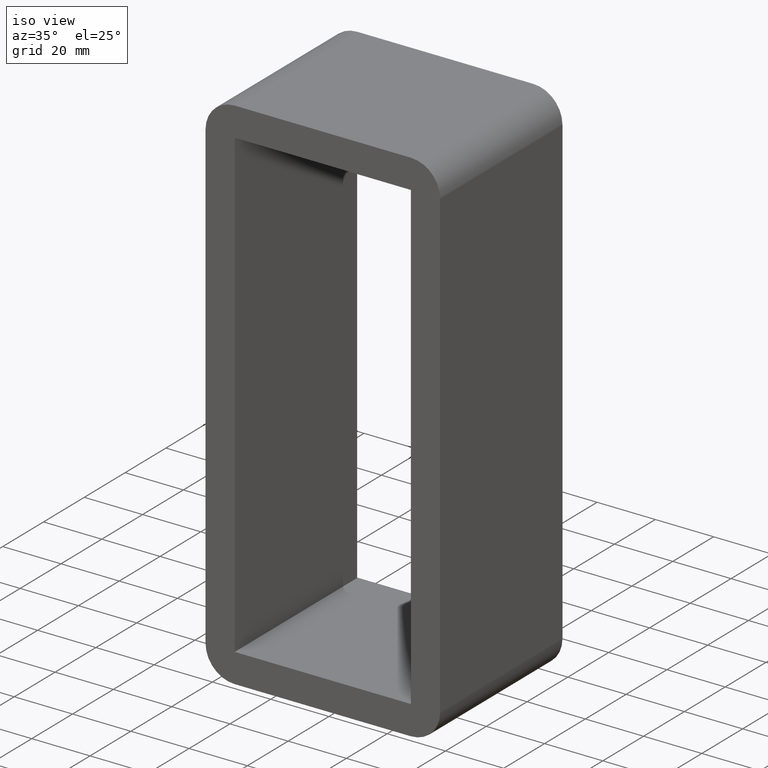
[diagram: clean part render]
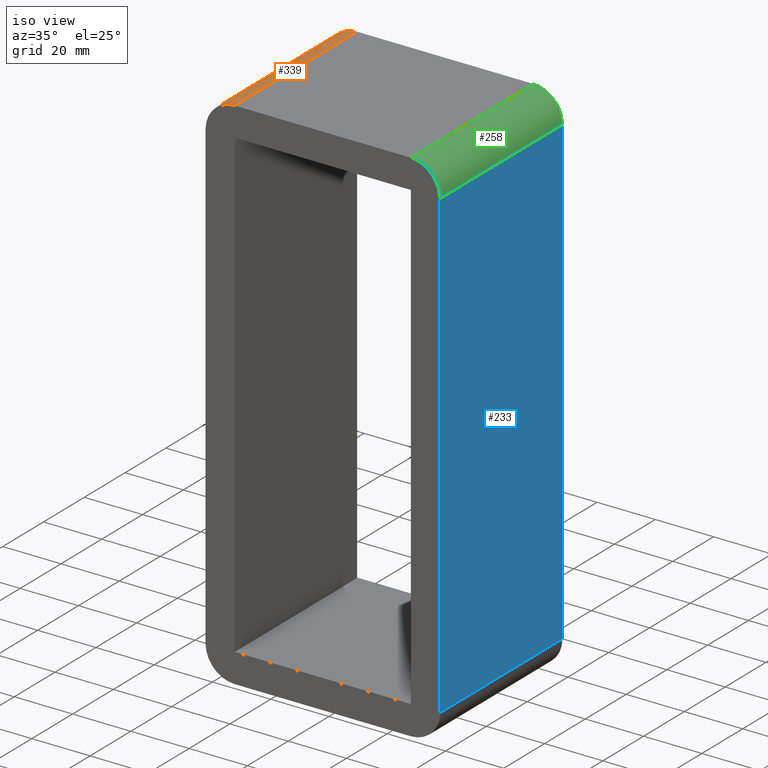
[diagram: same view with three faces highlighted in distinct colors, each labeled with its STEP entity id]
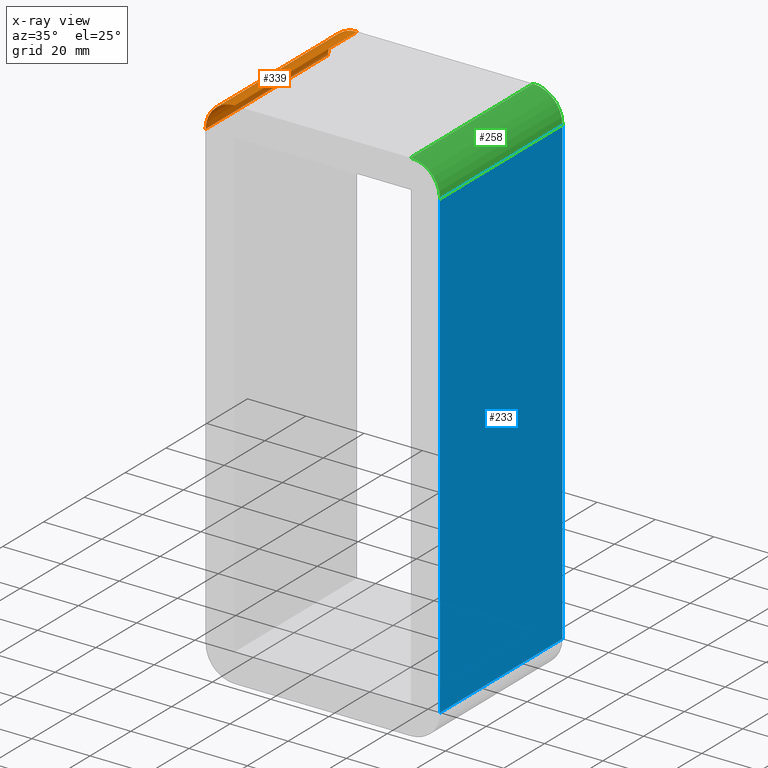
[diagram: x-ray of the same camera — body ghosted, the three highlighted faces saturated]
A machine part, iso view with three faces highlighted in distinct colors.
The next image is the same camera in x-ray (body ghosted, the three faces saturated) — at least one of them is partly hidden behind the body in this view.
Their STEP definitions:

[orange] entity #339 — the highlighted cylindrical surface (edge-blend (fillet) strip) has radius 10 mm, axis along (0, 1, 0).
#133=CARTESIAN_POINT('',(-30.250000000000014,-3.0,89.750000000000014));
#134=VERTEX_POINT('',#133);
#141=CARTESIAN_POINT('',(-40.250000000000014,-3.0,79.750000000000014));
#142=VERTEX_POINT('',#141);
#143=CARTESIAN_POINT('',(-30.250000000000014,-3.0,79.750000000000014));
#144=DIRECTION('',(0.0,1.0,0.0));
#145=DIRECTION('',(-0.707106781186547,0.0,0.707106781186547));
#146=AXIS2_PLACEMENT_3D('',#143,#144,#145);
#147=CIRCLE('',#146,9.999999999999998);
#148=EDGE_CURVE('',#142,#134,#147,.T.);
#298=CARTESIAN_POINT('',(-40.250000000000014,57.0,79.750000000000014));
#299=VERTEX_POINT('',#298);
#300=CARTESIAN_POINT('',(-40.250000000000014,57.0,79.750000000000014));
#301=DIRECTION('',(0.0,-1.0,0.0));
#302=VECTOR('',#301,60.0);
#303=LINE('',#300,#302);
#304=EDGE_CURVE('',#299,#142,#303,.T.);
#315=CARTESIAN_POINT('',(-30.250000000000014,0.0,79.750000000000014));
#316=DIRECTION('',(0.0,1.0,0.0));
#317=DIRECTION('',(-0.707106781186547,0.0,0.707106781186547));
#318=AXIS2_PLACEMENT_3D('',#315,#316,#317);
#319=CYLINDRICAL_SURFACE('',#318,10.0);
#320=CARTESIAN_POINT('',(-30.250000000000014,57.0,89.750000000000014));
#321=VERTEX_POINT('',#320);
#322=CARTESIAN_POINT('',(-30.250000000000014,57.0,79.750000000000014));
#323=DIRECTION('',(0.0,-1.0,0.0));
#324=DIRECTION('',(-0.707106781186547,0.0,0.707106781186547));
#325=AXIS2_PLACEMENT_3D('',#322,#323,#324);
#326=CIRCLE('',#325,9.999999999999998);
#327=EDGE_CURVE('',#321,#299,#326,.T.);
#328=ORIENTED_EDGE('',*,*,#327,.T.);
#329=ORIENTED_EDGE('',*,*,#304,.T.);
#330=ORIENTED_EDGE('',*,*,#148,.T.);
#331=CARTESIAN_POINT('',(-30.250000000000014,-3.0,89.750000000000014));
#332=DIRECTION('',(0.0,1.0,0.0));
#333=VECTOR('',#332,60.0);
#334=LINE('',#331,#333);
#335=EDGE_CURVE('',#134,#321,#334,.T.);
#336=ORIENTED_EDGE('',*,*,#335,.T.);
#337=EDGE_LOOP('',(#328,#329,#330,#336));
#338=FACE_OUTER_BOUND('',#337,.T.);
#339=ADVANCED_FACE('',(#338),#319,.T.);

[blue] entity #233 — the highlighted planar face has unit normal (1, 0, 0).
#75=CARTESIAN_POINT('',(40.25,57.0,-79.750000000000014));
#76=VERTEX_POINT('',#75);
#84=CARTESIAN_POINT('',(40.25,-3.0,-79.750000000000014));
#85=VERTEX_POINT('',#84);
#86=CARTESIAN_POINT('',(40.25,57.0,-79.750000000000014));
#87=DIRECTION('',(0.0,-1.0,0.0));
#88=VECTOR('',#87,60.0);
#89=LINE('',#86,#88);
#90=EDGE_CURVE('',#76,#85,#89,.T.);
#116=CARTESIAN_POINT('',(40.25,-3.0,79.750000000000014));
#117=VERTEX_POINT('',#116);
#118=CARTESIAN_POINT('',(40.25,-3.0,-79.750000000000014));
#119=DIRECTION('',(0.0,0.0,1.0));
#120=VECTOR('',#119,159.50000000000003);
#121=LINE('',#118,#120);
#122=EDGE_CURVE('',#85,#117,#121,.T.);
#210=CARTESIAN_POINT('',(40.25,0.0,89.750000000000014));
#211=DIRECTION('',(1.0,0.0,0.0));
#212=DIRECTION('',(0.0,0.0,-1.0));
#213=AXIS2_PLACEMENT_3D('',#210,#211,#212);
#214=PLANE('',#213);
#215=ORIENTED_EDGE('',*,*,#90,.F.);
#216=CARTESIAN_POINT('',(40.25,57.0,79.750000000000014));
#217=VERTEX_POINT('',#216);
#218=CARTESIAN_POINT('',(40.25,57.0,79.750000000000014));
#219=DIRECTION('',(0.0,0.0,-1.0));
#220=VECTOR('',#219,159.50000000000003);
#221=LINE('',#218,#220);
#222=EDGE_CURVE('',#217,#76,#221,.T.);
#223=ORIENTED_EDGE('',*,*,#222,.F.);
#224=CARTESIAN_POINT('',(40.25,-3.0,79.750000000000014));
#225=DIRECTION('',(0.0,1.0,0.0));
#226=VECTOR('',#225,60.0);
#227=LINE('',#224,#226);
#228=EDGE_CURVE('',#117,#217,#227,.T.);
#229=ORIENTED_EDGE('',*,*,#228,.F.);
#230=ORIENTED_EDGE('',*,*,#122,.F.);
#231=EDGE_LOOP('',(#215,#223,#229,#230));
#232=FACE_OUTER_BOUND('',#231,.T.);
#233=ADVANCED_FACE('',(#232),#214,.T.);

[green] entity #258 — the highlighted cylindrical surface (edge-blend (fillet) strip) has radius 10 mm, axis along (0, -1, 0).
#116=CARTESIAN_POINT('',(40.25,-3.0,79.750000000000014));
#117=VERTEX_POINT('',#116);
#124=CARTESIAN_POINT('',(30.250000000000004,-3.0,89.750000000000014));
#125=VERTEX_POINT('',#124);
#126=CARTESIAN_POINT('',(30.250000000000004,-3.0,79.750000000000014));
#127=DIRECTION('',(0.0,1.0,0.0));
#128=DIRECTION('',(0.707106781186547,0.0,0.707106781186547));
#129=AXIS2_PLACEMENT_3D('',#126,#127,#128);
#130=CIRCLE('',#129,9.999999999999998);
#131=EDGE_CURVE('',#125,#117,#130,.T.);
#216=CARTESIAN_POINT('',(40.25,57.0,79.750000000000014));
#217=VERTEX_POINT('',#216);
#224=CARTESIAN_POINT('',(40.25,-3.0,79.750000000000014));
#225=DIRECTION('',(0.0,1.0,0.0));
#226=VECTOR('',#225,60.0);
#227=LINE('',#224,#226);
#228=EDGE_CURVE('',#117,#217,#227,.T.);
#234=CARTESIAN_POINT('',(30.250000000000004,0.0,79.750000000000014));
#235=DIRECTION('',(0.0,-1.0,0.0));
#236=DIRECTION('',(0.707106781186547,0.0,0.707106781186547));
#237=AXIS2_PLACEMENT_3D('',#234,#235,#236);
#238=CYLINDRICAL_SURFACE('',#237,10.0);
#239=ORIENTED_EDGE('',*,*,#131,.T.);
#240=ORIENTED_EDGE('',*,*,#228,.T.);
#241=CARTESIAN_POINT('',(30.250000000000004,57.0,89.750000000000014));
#242=VERTEX_POINT('',#241);
#243=CARTESIAN_POINT('',(30.250000000000004,57.0,79.750000000000014));
#244=DIRECTION('',(0.0,-1.0,0.0));
#245=DIRECTION('',(0.707106781186547,0.0,0.707106781186547));
#246=AXIS2_PLACEMENT_3D('',#243,#244,#245);
#247=CIRCLE('',#246,9.999999999999998);
#248=EDGE_CURVE('',#217,#242,#247,.T.);
#249=ORIENTED_EDGE('',*,*,#248,.T.);
#250=CARTESIAN_POINT('',(30.250000000000004,57.0,89.750000000000014));
#251=DIRECTION('',(0.0,-1.0,0.0));
#252=VECTOR('',#251,60.0);
#253=LINE('',#250,#252);
#254=EDGE_CURVE('',#242,#125,#253,.T.);
#255=ORIENTED_EDGE('',*,*,#254,.T.);
#256=EDGE_LOOP('',(#239,#240,#249,#255));
#257=FACE_OUTER_BOUND('',#256,.T.);
#258=ADVANCED_FACE('',(#257),#238,.T.);